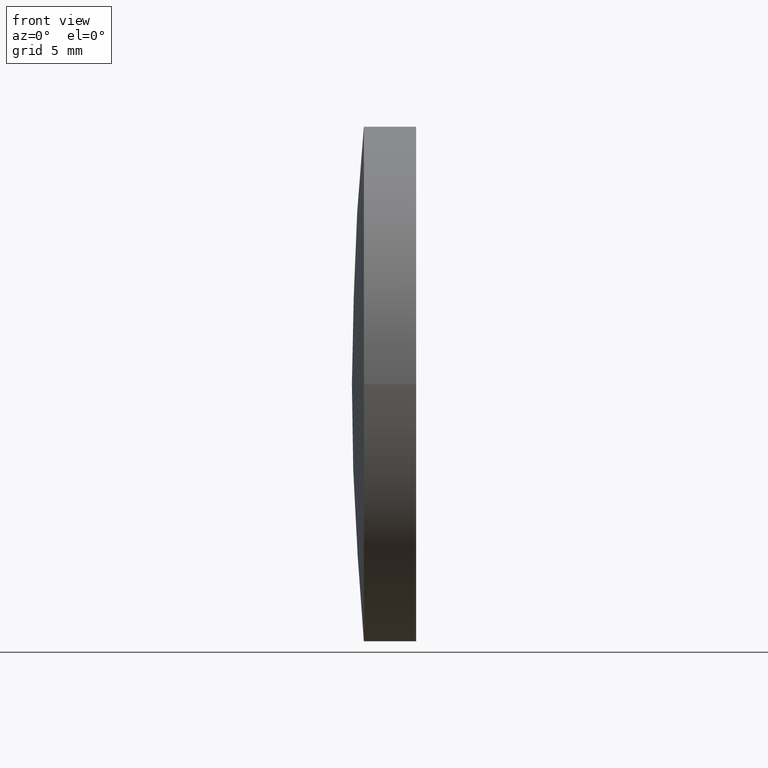
[diagram: clean part render]
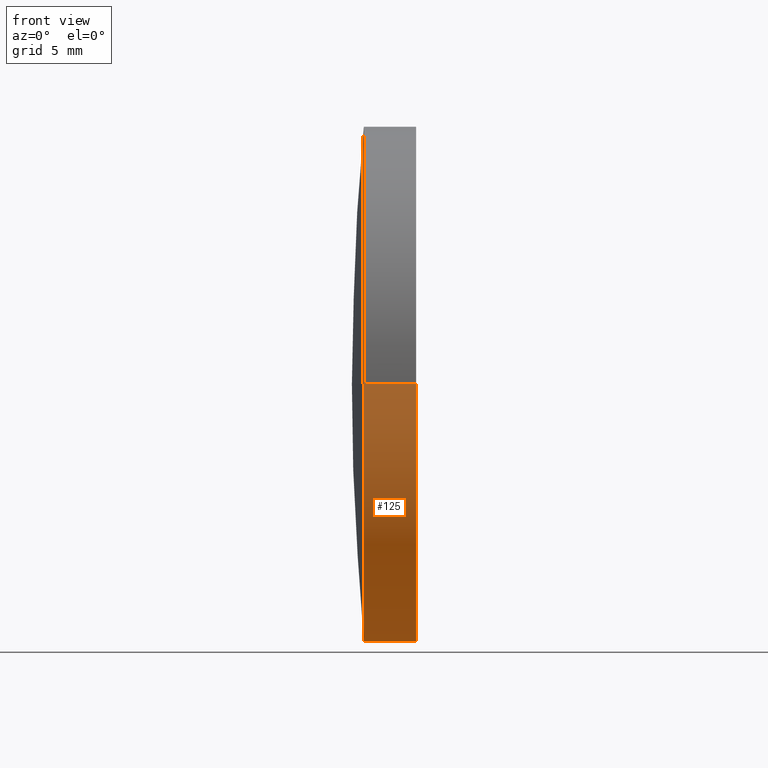
[diagram: same view with one face highlighted and labeled with its STEP entity id]
A machine part, front view. The second image highlights one B-rep face of the part: STEP entity #125.
In plain terms, the highlighted cylindrical surface (partial cylindrical patch) has radius 12.5 mm, axis along (-1, -0, -0).
Its self-contained STEP definition (entity closure, byte-faithful):
#12 = VERTEX_POINT ( 'NONE', #79 ) ;
#14 = VECTOR ( 'NONE', #40, 1000.000000000000000 ) ;
#16 = CARTESIAN_POINT ( 'NONE',  ( 115.9444912979631800, 52.71684047094035500, 0.0000000000000000000 ) ) ;
#18 = CARTESIAN_POINT ( 'NONE',  ( 123.1904224595736100, 65.21684047094032600, 0.0000000000000000000 ) ) ;
#22 = VERTEX_POINT ( 'NONE', #75 ) ;
#24 = EDGE_CURVE ( 'NONE', #22, #49, #145, .T. ) ;
#26 = ORIENTED_EDGE ( 'NONE', *, *, #113, .F. ) ;
#40 = DIRECTION ( 'NONE',  ( -1.000000000000000000, -6.937607244762875000E-016, -0.0000000000000000000 ) ) ;
#49 = VERTEX_POINT ( 'NONE', #61 ) ;
#50 = EDGE_CURVE ( 'NONE', #12, #49, #183, .T. ) ;
#51 = CARTESIAN_POINT ( 'NONE',  ( 115.9444912979631500, 77.71684047094029800, 1.530808498934187800E-015 ) ) ;
#52 = VERTEX_POINT ( 'NONE', #76 ) ;
#58 = AXIS2_PLACEMENT_3D ( 'NONE', #18, #101, #148 ) ;
#61 = CARTESIAN_POINT ( 'NONE',  ( 123.1904224595736300, 52.71684047094031200, 0.0000000000000000000 ) ) ;
#63 = LINE ( 'NONE', #51, #14 ) ;
#75 = CARTESIAN_POINT ( 'NONE',  ( 123.1904224595736000, 77.71684047094035500, 1.530808498934193900E-015 ) ) ;
#76 = CARTESIAN_POINT ( 'NONE',  ( 125.7226627224782000, 77.71684047094014100, 0.0000000000000000000 ) ) ;
#77 = CYLINDRICAL_SURFACE ( 'NONE', #165, 12.49999999999997000 ) ;
#79 = CARTESIAN_POINT ( 'NONE',  ( 125.7226627224782000, 52.71684047094036900, -1.530808498934169000E-015 ) ) ;
#81 = EDGE_LOOP ( 'NONE', ( #26, #181, #99, #116 ) ) ;
#90 = CARTESIAN_POINT ( 'NONE',  ( 115.9444912979631700, 65.21684047094032600, 0.0000000000000000000 ) ) ;
#91 = CIRCLE ( 'NONE', #162, 12.49999999999990800 ) ;
#99 = ORIENTED_EDGE ( 'NONE', *, *, #50, .T. ) ;
#101 = DIRECTION ( 'NONE',  ( -1.000000000000000000, -6.937607244762875000E-016, -0.0000000000000000000 ) ) ;
#113 = EDGE_CURVE ( 'NONE', #52, #22, #63, .T. ) ;
#115 = FACE_OUTER_BOUND ( 'NONE', #81, .T. ) ;
#116 = ORIENTED_EDGE ( 'NONE', *, *, #24, .F. ) ;
#120 = DIRECTION ( 'NONE',  ( -1.000000000000000000, -6.937607244762875000E-016, -0.0000000000000000000 ) ) ;
#125 = ADVANCED_FACE ( 'NONE', ( #115 ), #77, .T. ) ;
#135 = DIRECTION ( 'NONE',  ( -1.000000000000000000, -6.937607244762875000E-016, -0.0000000000000000000 ) ) ;
#136 = VECTOR ( 'NONE', #180, 1000.000000000000000 ) ;
#145 = CIRCLE ( 'NONE', #58, 12.50000000000001800 ) ;
#148 = DIRECTION ( 'NONE',  ( 1.110223024625155000E-015, -1.000000000000000000, 0.0000000000000000000 ) ) ;
#149 = EDGE_CURVE ( 'NONE', #52, #12, #91, .T. ) ;
#150 = DIRECTION ( 'NONE',  ( 0.0000000000000000000, -1.000000000000000000, 0.0000000000000000000 ) ) ;
#153 = DIRECTION ( 'NONE',  ( 1.110223024625159300E-015, -1.000000000000000000, 0.0000000000000000000 ) ) ;
#162 = AXIS2_PLACEMENT_3D ( 'NONE', #186, #135, #150 ) ;
#165 = AXIS2_PLACEMENT_3D ( 'NONE', #90, #120, #153 ) ;
#180 = DIRECTION ( 'NONE',  ( -1.000000000000000000, -6.937607244762875000E-016, -0.0000000000000000000 ) ) ;
#181 = ORIENTED_EDGE ( 'NONE', *, *, #149, .T. ) ;
#183 = LINE ( 'NONE', #16, #136 ) ;
#186 = CARTESIAN_POINT ( 'NONE',  ( 125.7226627224781800, 65.21684047094032600, 0.0000000000000000000 ) ) ;